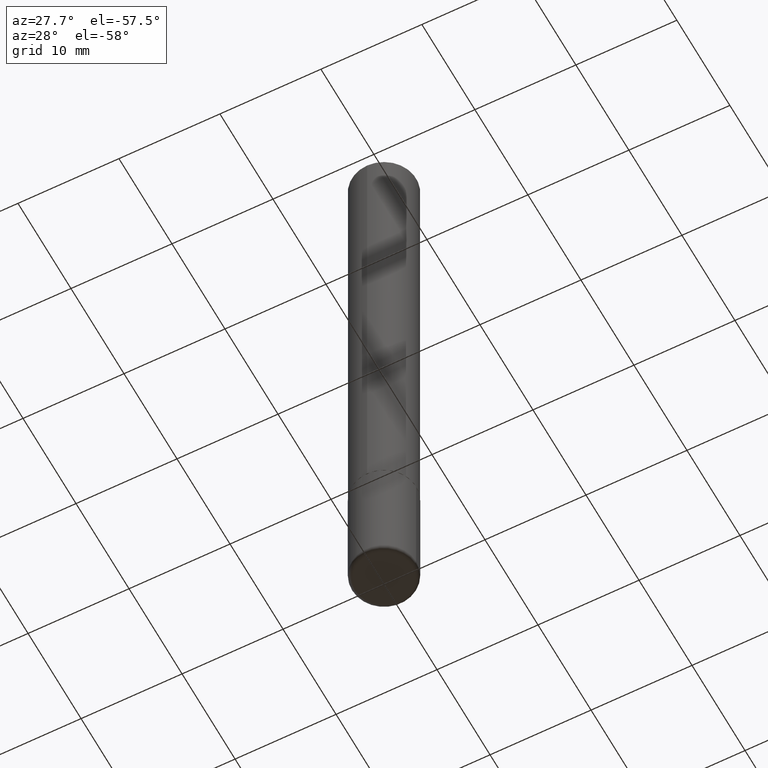
[diagram: clean part render]
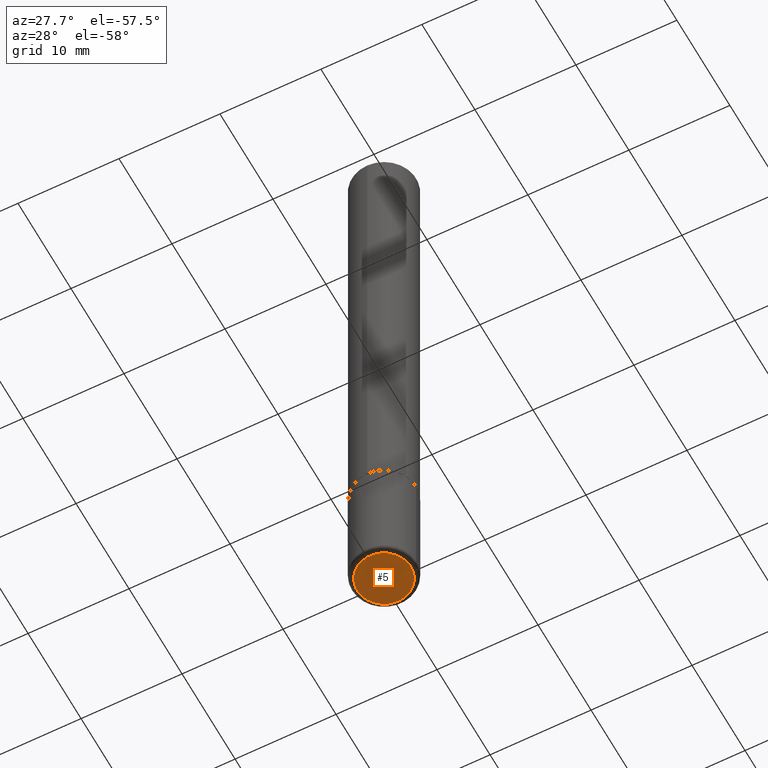
[diagram: same view with one face highlighted and labeled with its STEP entity id]
A machine part, auxiliary view. The second image highlights one B-rep face of the part: STEP entity #5.
In plain terms, the highlighted planar face has unit normal (0, -0, -1).
Its self-contained STEP definition (entity closure, byte-faithful):
#5 = ADVANCED_FACE ( 'NONE', ( #211 ), #91, .T. ) ;
#8 = ORIENTED_EDGE ( 'NONE', *, *, #73, .F. ) ;
#50 = DIRECTION ( 'NONE',  ( -2.445468806185136597E-29, 3.491481338843145583E-15, 1.000000000000000000 ) ) ;
#66 = DIRECTION ( 'NONE',  ( -2.445468806185136597E-29, 3.491481338843145583E-15, 1.000000000000000000 ) ) ;
#73 = EDGE_CURVE ( 'NONE', #253, #301, #87, .T. ) ;
#87 = CIRCLE ( 'NONE', #256, 0.1050000000000000377 ) ;
#91 = PLANE ( 'NONE',  #115 ) ;
#115 = AXIS2_PLACEMENT_3D ( 'NONE', #281, #159, #244 ) ;
#137 = ORIENTED_EDGE ( 'NONE', *, *, #324, .F. ) ;
#141 = CARTESIAN_POINT ( 'NONE',  ( 6.113672015462842613E-29, -8.728703347107864943E-15, -2.500000000000000000 ) ) ;
#143 = EDGE_LOOP ( 'NONE', ( #137, #8 ) ) ;
#159 = DIRECTION ( 'NONE',  ( 2.438088387897960049E-29, -3.491481338843145188E-15, -1.000000000000000000 ) ) ;
#187 = DIRECTION ( 'NONE',  ( 1.000000000000000000, -6.982962677686274599E-15, 0.000000000000000000 ) ) ;
#211 = FACE_OUTER_BOUND ( 'NONE', #143, .T. ) ;
#233 = CIRCLE ( 'NONE', #287, 0.1050000000000000377 ) ;
#244 = DIRECTION ( 'NONE',  ( -1.000000000000000000, 6.982962677686265922E-15, -4.876176775795935793E-29 ) ) ;
#253 = VERTEX_POINT ( 'NONE', #332 ) ;
#256 = AXIS2_PLACEMENT_3D ( 'NONE', #353, #66, #187 ) ;
#270 = DIRECTION ( 'NONE',  ( 1.000000000000000000, -6.982962677686274599E-15, 0.000000000000000000 ) ) ;
#281 = CARTESIAN_POINT ( 'NONE',  ( 6.113672015462842613E-29, -8.728703347107864943E-15, -2.500000000000000000 ) ) ;
#287 = AXIS2_PLACEMENT_3D ( 'NONE', #141, #50, #270 ) ;
#301 = VERTEX_POINT ( 'NONE', #329 ) ;
#324 = EDGE_CURVE ( 'NONE', #301, #253, #233, .T. ) ;
#329 = CARTESIAN_POINT ( 'NONE',  ( 0.1050000000000000377, -9.461914428264923263E-15, -2.500000000000000000 ) ) ;
#332 = CARTESIAN_POINT ( 'NONE',  ( -0.1050000000000000377, -7.876664387595318143E-15, -2.500000000000000000 ) ) ;
#353 = CARTESIAN_POINT ( 'NONE',  ( 6.113672015462842613E-29, -8.728703347107864943E-15, -2.500000000000000000 ) ) ;